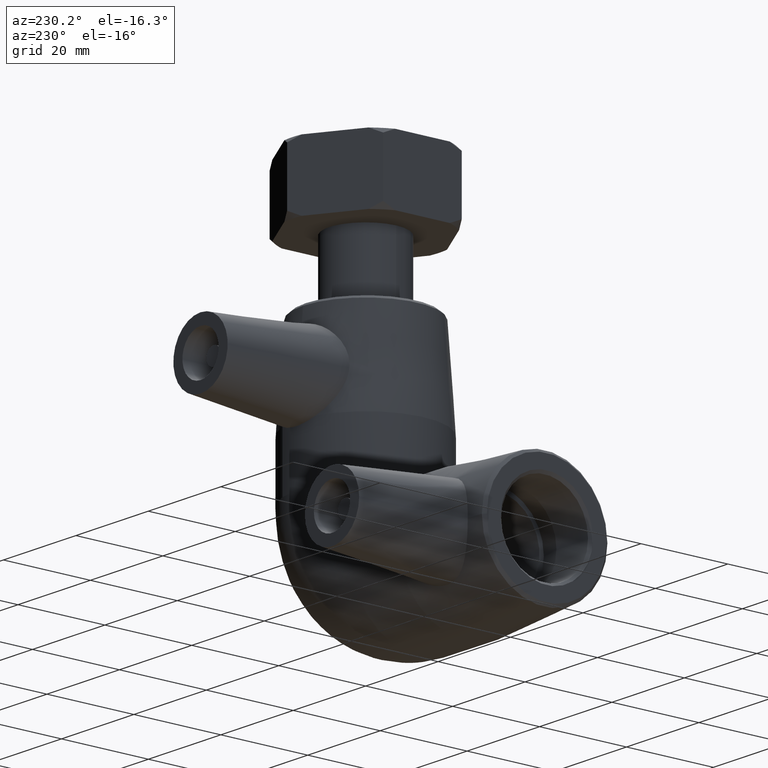
[diagram: clean part render]
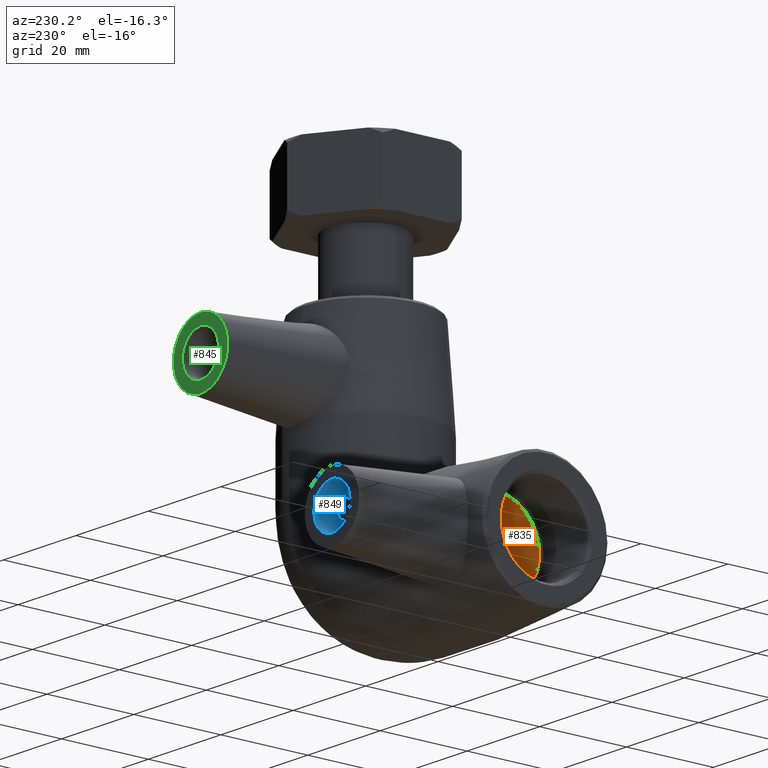
[diagram: same view with three faces highlighted in distinct colors, each labeled with its STEP entity id]
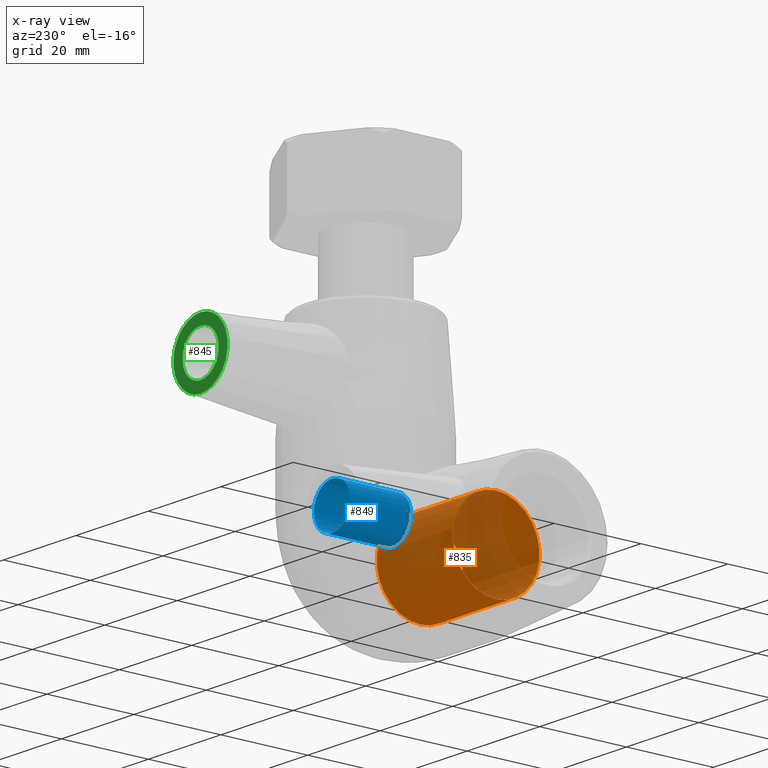
[diagram: x-ray of the same camera — body ghosted, the three highlighted faces saturated]
A machine part, auxiliary view with three faces highlighted in distinct colors.
The next image is the same camera in x-ray (body ghosted, the three faces saturated) — at least one of them is partly hidden behind the body in this view.
Their STEP definitions:

[orange] entity #835 — the highlighted cylindrical surface (bore or boss wall) has radius 10 mm, axis along (1, -0, 0).
#91=CYLINDRICAL_SURFACE('',#938,10.);
#144=FACE_BOUND('',#289,.T.);
#202=FACE_OUTER_BOUND('',#288,.T.);
#288=EDGE_LOOP('',(#720));
#289=EDGE_LOOP('',(#721));
#363=CIRCLE('',#939,10.);
#364=CIRCLE('',#940,10.);
#445=VERTEX_POINT('',#1537);
#446=VERTEX_POINT('',#1539);
#543=EDGE_CURVE('',#445,#445,#363,.T.);
#544=EDGE_CURVE('',#446,#446,#364,.T.);
#720=ORIENTED_EDGE('',*,*,#543,.F.);
#721=ORIENTED_EDGE('',*,*,#544,.T.);
#835=ADVANCED_FACE('',(#202,#144),#91,.F.);
#938=AXIS2_PLACEMENT_3D('',#1536,#1152,#1153);
#939=AXIS2_PLACEMENT_3D('',#1538,#1154,#1155);
#940=AXIS2_PLACEMENT_3D('',#1540,#1156,#1157);
#1152=DIRECTION('center_axis',(1.,-2.77555756156289E-18,0.));
#1153=DIRECTION('ref_axis',(0.,0.,-1.));
#1154=DIRECTION('center_axis',(1.,-2.77555756156289E-18,0.));
#1155=DIRECTION('ref_axis',(0.,0.,-1.));
#1156=DIRECTION('center_axis',(1.,-2.77555756156289E-18,0.));
#1157=DIRECTION('ref_axis',(0.,0.,-1.));
#1536=CARTESIAN_POINT('Origin',(-50.,1.38777878078145E-16,0.));
#1537=CARTESIAN_POINT('',(-36.,-1.12472672693109E-15,10.));
#1538=CARTESIAN_POINT('Origin',(-36.,9.99200722162641E-17,0.));
#1539=CARTESIAN_POINT('',(-15.,1.2662801625708E-15,10.));
#1540=CARTESIAN_POINT('Origin',(-15.,4.16333634234435E-17,0.));

[blue] entity #849 — the highlighted cylindrical surface (bore or boss wall) has radius 5 mm, axis along (0, -1, 0).
#96=CYLINDRICAL_SURFACE('',#965,5.);
#154=FACE_BOUND('',#313,.T.);
#216=FACE_OUTER_BOUND('',#312,.T.);
#312=EDGE_LOOP('',(#750));
#313=EDGE_LOOP('',(#751));
#376=CIRCLE('',#966,5.);
#377=CIRCLE('',#967,5.);
#457=VERTEX_POINT('',#1613);
#458=VERTEX_POINT('',#1615);
#558=EDGE_CURVE('',#457,#457,#376,.T.);
#559=EDGE_CURVE('',#458,#458,#377,.T.);
#750=ORIENTED_EDGE('',*,*,#558,.T.);
#751=ORIENTED_EDGE('',*,*,#559,.F.);
#849=ADVANCED_FACE('',(#216,#154),#96,.F.);
#965=AXIS2_PLACEMENT_3D('',#1612,#1206,#1207);
#966=AXIS2_PLACEMENT_3D('',#1614,#1208,#1209);
#967=AXIS2_PLACEMENT_3D('',#1616,#1210,#1211);
#1206=DIRECTION('center_axis',(0.,-1.,0.));
#1207=DIRECTION('ref_axis',(-1.,0.,0.));
#1208=DIRECTION('center_axis',(0.,-1.,0.));
#1209=DIRECTION('ref_axis',(-1.,0.,0.));
#1210=DIRECTION('center_axis',(0.,-1.,0.));
#1211=DIRECTION('ref_axis',(-1.,0.,0.));
#1612=CARTESIAN_POINT('Origin',(-36.3,38.,0.));
#1613=CARTESIAN_POINT('',(-31.3,24.,-6.12323399573677E-16));
#1614=CARTESIAN_POINT('Origin',(-36.3,24.,0.));
#1615=CARTESIAN_POINT('',(-31.3,38.,-6.12323399573677E-16));
#1616=CARTESIAN_POINT('Origin',(-36.3,38.,0.));

[green] entity #845 — the highlighted planar face has unit normal (0, 1, 0).
#116=PLANE('',#959);
#152=FACE_BOUND('',#307,.T.);
#212=FACE_OUTER_BOUND('',#306,.T.);
#306=EDGE_LOOP('',(#743));
#307=EDGE_LOOP('',(#744));
#371=CIRCLE('',#952,5.);
#373=CIRCLE('',#958,7.5);
#453=VERTEX_POINT('',#1585);
#454=VERTEX_POINT('',#1592);
#551=EDGE_CURVE('',#453,#453,#371,.T.);
#554=EDGE_CURVE('',#454,#454,#373,.T.);
#743=ORIENTED_EDGE('',*,*,#554,.F.);
#744=ORIENTED_EDGE('',*,*,#551,.T.);
#845=ADVANCED_FACE('',(#212,#152),#116,.T.);
#952=AXIS2_PLACEMENT_3D('',#1586,#1180,#1181);
#958=AXIS2_PLACEMENT_3D('',#1593,#1192,#1193);
#959=AXIS2_PLACEMENT_3D('',#1604,#1194,#1195);
#1180=DIRECTION('center_axis',(0.,-1.,0.));
#1181=DIRECTION('ref_axis',(-6.12323399573677E-17,0.,1.));
#1192=DIRECTION('center_axis',(0.,-1.,0.));
#1193=DIRECTION('ref_axis',(6.12323399573676E-17,0.,-1.));
#1194=DIRECTION('center_axis',(0.,1.,0.));
#1195=DIRECTION('ref_axis',(1.,0.,0.));
#1585=CARTESIAN_POINT('',(-2.52889564023929E-15,38.,31.3));
#1586=CARTESIAN_POINT('Origin',(-2.22273394045245E-15,38.,36.3));
#1592=CARTESIAN_POINT('',(-1.76349139077219E-15,38.,43.8));
#1593=CARTESIAN_POINT('Origin',(-2.22273394045245E-15,38.,36.3));
#1604=CARTESIAN_POINT('Origin',(-2.09937582660521E-15,38.,36.3));